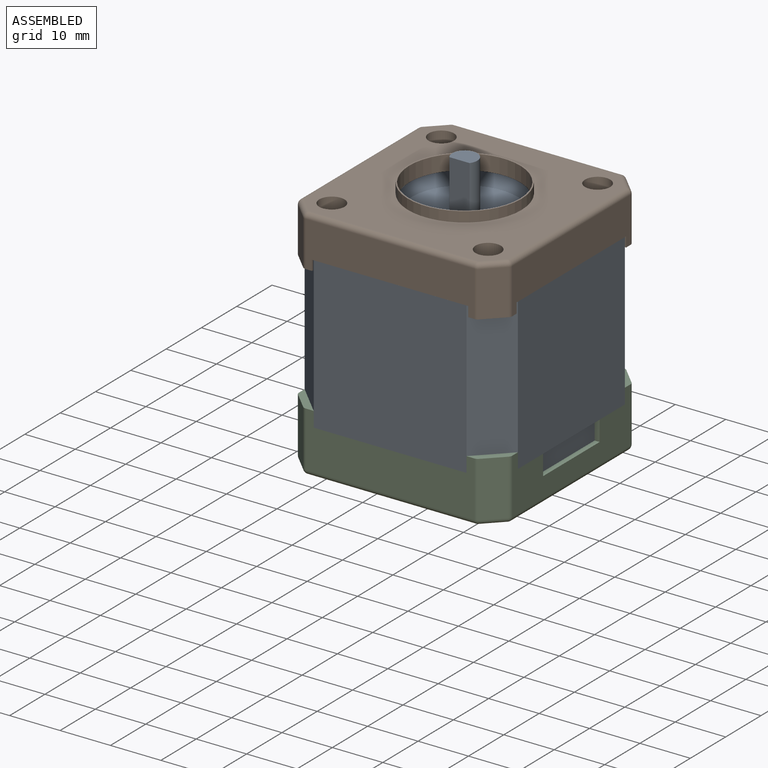
[diagram: assembled view]
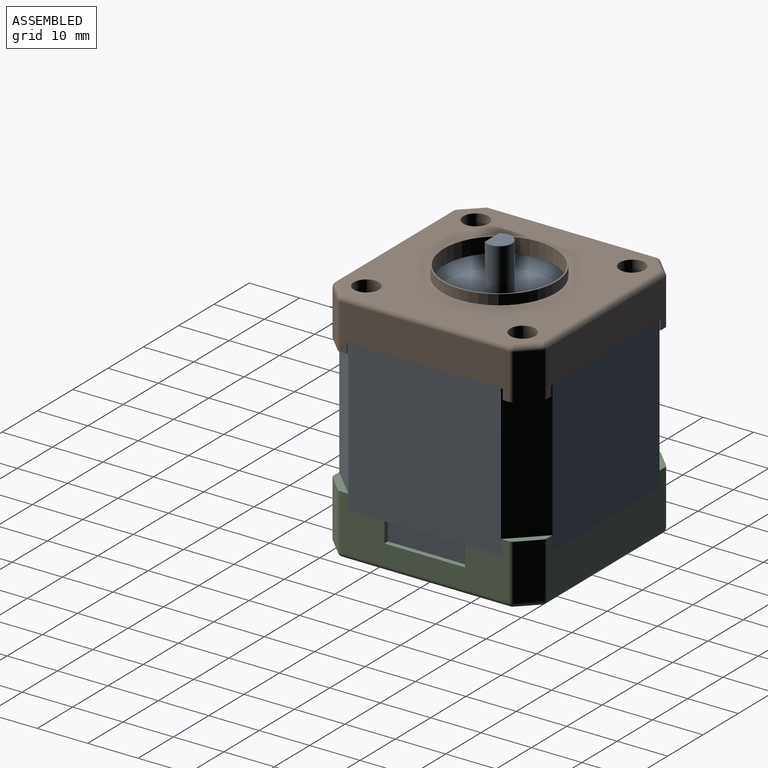
[diagram: assembled view, second angle]
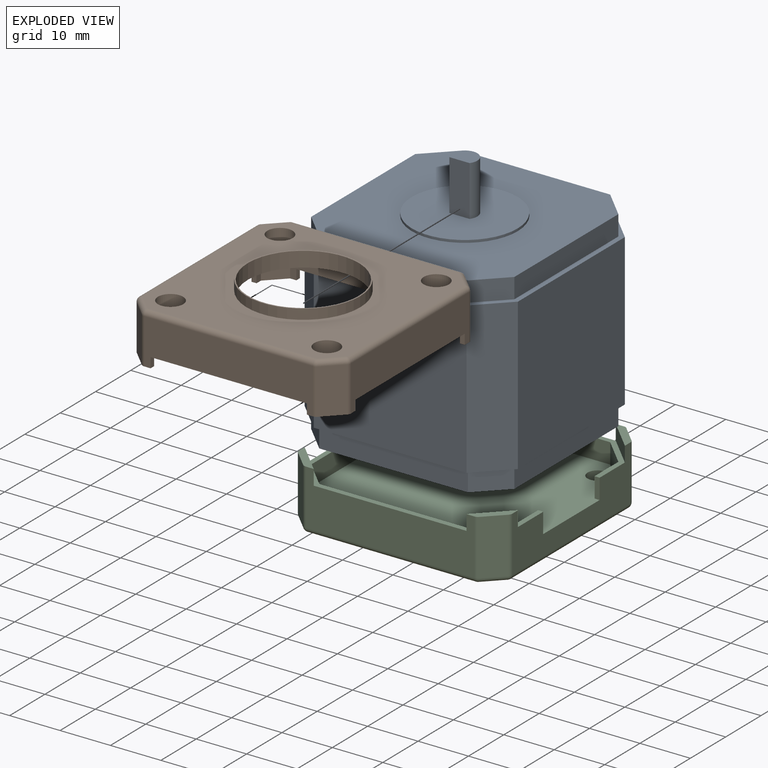
[diagram: exploded view]
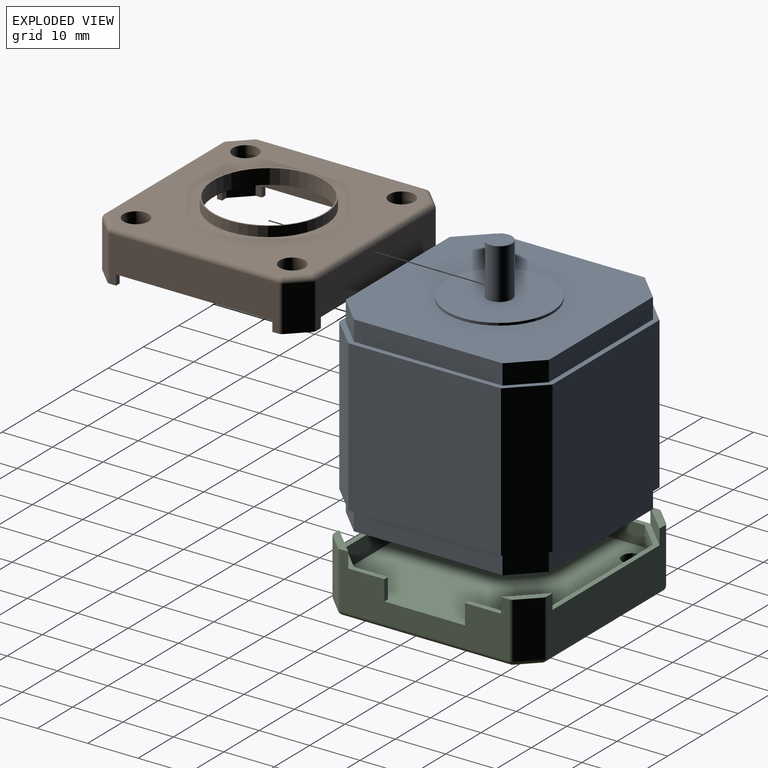
[diagram: exploded view, second angle]
ASSEMBLY  parts=3 mates=6
PART A: 33 faces, bbox 42.3x42.3x48.5 mm
  f0: plane 29.47x4mm, normal (0,-1,0), area 117.9mm2, adj f4,f7,f8,f9
  f1: plane 29.47x4mm, normal (1,0,0), area 117.9mm2, adj f4,f5,f7,f9
  f2: plane 29.47x4mm, normal (0,1,0), area 117.9mm2, adj f4,f5,f6,f9
  f3: plane 29.47x4mm, normal (-1,0,0), area 117.9mm2, adj f4,f6,f8,f9
  f4: plane 40.3x40.3mm, normal (0,0,-1), area 1565.5mm2, adj f0,f1,f2,f3,f5,f6,f7,f8
  f5: plane 5.41x5.41mm, normal (0.71,0.71,0), area 30.6mm2, adj f1,f2,f4,f9
  f6: plane 5.41x5.41mm, normal (-0.71,0.71,0), area 30.6mm2, adj f2,f3,f4,f9
  f7: plane 5.41x5.41mm, normal (0.71,-0.71,0), area 30.6mm2, adj f0,f1,f4,f9
  f8: plane 5.41x5.41mm, normal (-0.71,-0.71,0), area 30.6mm2, adj f0,f3,f4,f9
  f9: plane 42.3x42.3mm, normal (0,0,-1), area 151.8mm2, adj f0,f1,f2,f3,f5,f6,f7,f8
  f10: plane 30.3x30mm, normal (0,-1,0), area 909mm2, adj f9,f14,f17,f18
  f11: plane 30.3x30mm, normal (1,0,0), area 909mm2, adj f9,f14,f16,f17
  f12: plane 30.3x30mm, normal (0,1,0), area 909mm2, adj f9,f14,f15,f16
  f13: plane 30.3x30mm, normal (-1,0,0), area 909mm2, adj f9,f14,f15,f18
  f14: plane 42.3x42.3mm, normal (0,0,1), area 151.8mm2, adj f10,f11,f12,f13,f15,f16,f17,f18
  f15: plane 30x6mm, normal (-0.71,0.71,0), area 254.6mm2, adj f9,f12,f13,f14
  f16: plane 30x6mm, normal (0.71,0.71,0), area 254.6mm2, adj f9,f11,f12,f14
  f17: plane 30x6mm, normal (0.71,-0.71,0), area 254.6mm2, adj f9,f10,f11,f14
  f18: plane 30x6mm, normal (-0.71,-0.71,0), area 254.6mm2, adj f9,f10,f13,f14
  f19: plane 29.47x4mm, normal (0,-1,0), area 117.9mm2, adj f14,f23,f24,f25
  f20: plane 29.47x4mm, normal (1,0,0), area 117.9mm2, adj f14,f23,f24,f27
  f21: plane 29.47x4mm, normal (0,1,0), area 117.9mm2, adj f14,f23,f26,f27
  f22: plane 29.47x4mm, normal (-1,0,0), area 117.9mm2, adj f14,f23,f25,f26
  f23: plane 40.3x40.3mm, normal (0,0,1), area 1219.1mm2, adj f19,f20,f21,f22,f24,f25,f26,f27
  f24: plane 5.41x5.41mm, normal (0.71,-0.71,0), area 30.6mm2, adj f14,f19,f20,f23
  f25: plane 5.41x5.41mm, normal (-0.71,-0.71,0), area 30.6mm2, adj f14,f19,f22,f23
  f26: plane 5.41x5.41mm, normal (-0.71,0.71,0), area 30.6mm2, adj f14,f21,f22,f23
  f27: plane 5.41x5.41mm, normal (0.71,0.71,0), area 30.6mm2, adj f14,f20,f21,f23
  f28: cylinder r=10.5mm len=21mm, axis (0,0,-1), area 33mm2, adj f23,f29
  f29: plane 21x21mm, normal (0,0,1), area 329.5mm2, adj f28,f30,f31
  f30: plane 10x4mm, normal (0,-1,0), area 40mm2, adj f29,f31,f32
  f31: cylinder r=2.5mm len=10mm, axis (0,0,-1), area 110.7mm2, adj f29,f30,f32
  f32: plane 5x4mm, normal (0,0,1), area 16.8mm2, adj f30,f31
PART B: 81 faces, bbox 42.3x42.3x12 mm
  f0: plane 5.65x5.65mm, normal (0,0,-1), area 8.1mm2, adj f3,f6,f7,f10,f19,f32,f44,f52
  f1: plane 5.65x5.65mm, normal (0,0,-1), area 8.1mm2, adj f5,f6,f9,f10,f18,f31,f43,f47
  f2: plane 5.65x5.65mm, normal (0,0,-1), area 8.1mm2, adj f4,f5,f8,f9,f17,f30,f46,f50
  f3: plane 33.47x9mm, normal (-1,0,0), area 239.2mm2, adj f0,f11,f51,f52,f53,f71,f77,f80
  f4: plane 33.47x9mm, normal (0,-1,0), area 239.2mm2, adj f2,f11,f48,f49,f50,f68,f73,f74
  f5: plane 33.47x9mm, normal (1,0,0), area 239.2mm2, adj f1,f2,f45,f46,f47,f57,f61,f62
  f6: plane 33.47x9mm, normal (0,1,0), area 239.2mm2, adj f0,f1,f42,f43,f44,f59,f65,f66
  f7: plane 33.47x9mm, normal (1,0,0), area 239.2mm2, adj f0,f11,f29,f32,f33,f51,f52,f53
  f8: plane 33.47x9mm, normal (0,1,0), area 239.2mm2, adj f2,f11,f29,f30,f33,f48,f49,f50
  f9: plane 33.47x9mm, normal (-1,0,0), area 239.2mm2, adj f1,f2,f30,f31,f33,f45,f46,f47
  f10: plane 33.47x9mm, normal (0,-1,0), area 239.2mm2, adj f0,f1,f31,f32,f33,f42,f43,f44
  f11: plane 5.65x5.65mm, normal (0,0,-1), area 8.1mm2, adj f3,f4,f7,f8,f16,f29,f49,f51
  f12: cylinder r=2mm len=4mm, axis (0,0,-1), area 12.6mm2, adj f26,f39
  f13: cylinder r=2mm len=4mm, axis (0,0,-1), area 12.6mm2, adj f24,f37
  f14: cylinder r=2mm len=4mm, axis (0,0,-1), area 12.6mm2, adj f22,f35
  f15: cylinder r=2mm len=4mm, axis (0,0,-1), area 12.6mm2, adj f28,f41
  f16: plane 9x3.41mm, normal (-0.71,-0.71,0), area 43.5mm2, adj f11,f74,f78,f80
  f17: plane 9x3.41mm, normal (0.71,-0.71,0), area 43.5mm2, adj f2,f62,f67,f68
  f18: plane 9x3.41mm, normal (0.71,0.71,0), area 43.5mm2, adj f1,f57,f59,f60
  f19: plane 9x3.41mm, normal (-0.71,0.71,0), area 43.5mm2, adj f0,f65,f71,f72
  f20: plane 40.3x40.3mm, normal (0,0,1), area 1124.6mm2, adj f21,f23,f25,f27,f55,f60,f61,f66
  f21: cylinder r=2.5mm len=5mm, axis (0,0,1), area 47.1mm2, adj f20,f22
  f22: plane 5x5mm, normal (0,0,1), area 7.1mm2, adj f14,f21
  f23: cylinder r=2.5mm len=5mm, axis (0,0,1), area 47.1mm2, adj f20,f24
  f24: plane 5x5mm, normal (0,0,1), area 7.1mm2, adj f13,f23
  f25: cylinder r=2.5mm len=5mm, axis (0,0,1), area 47.1mm2, adj f20,f26
  f26: plane 5x5mm, normal (0,0,1), area 7.1mm2, adj f12,f25
  f27: cylinder r=2.5mm len=5mm, axis (0,0,1), area 47.1mm2, adj f20,f28
  f28: plane 5x5mm, normal (0,0,1), area 7.1mm2, adj f15,f27
  f29: plane 9x3.41mm, normal (0.71,0.71,0), area 43.5mm2, adj f7,f8,f11,f33
  f30: plane 9x3.41mm, normal (-0.71,0.71,0), area 43.5mm2, adj f2,f8,f9,f33
  f31: plane 9x3.41mm, normal (-0.71,-0.71,0), area 43.5mm2, adj f1,f9,f10,f33
  f32: plane 9x3.41mm, normal (0.71,-0.71,0), area 43.5mm2, adj f0,f7,f10,f33
  f33: plane 40.3x40.3mm, normal (0,0,-1), area 1066.7mm2, adj f7,f8,f9,f10,f29,f30,f31,f32
  f34: cylinder r=3.5mm len=7mm, axis (0,0,1), area 66mm2, adj f33,f35
  f35: plane 7x7mm, normal (0,0,-1), area 25.9mm2, adj f14,f34
  f36: cylinder r=3.5mm len=7mm, axis (0,0,1), area 66mm2, adj f33,f37
  f37: plane 7x7mm, normal (0,0,-1), area 25.9mm2, adj f13,f36
  f38: cylinder r=3.5mm len=7mm, axis (0,0,1), area 66mm2, adj f33,f39
  f39: plane 7x7mm, normal (0,0,-1), area 25.9mm2, adj f12,f38
  f40: cylinder r=3.5mm len=7mm, axis (0,0,1), area 66mm2, adj f33,f41
  f41: plane 7x7mm, normal (0,0,-1), area 25.9mm2, adj f15,f40
  f42: plane 31x1mm, normal (0,0,-1), area 31mm2, adj f6,f10,f43,f44
  f43: plane 2x1mm, normal (-1,0,0), area 2mm2, adj f1,f6,f10,f42
  f44: plane 2x1mm, normal (1,0,0), area 2mm2, adj f0,f6,f10,f42
  f45: plane 31x1mm, normal (0,0,-1), area 31mm2, adj f5,f9,f46,f47
  f46: plane 2x1mm, normal (0,1,0), area 2mm2, adj f2,f5,f9,f45
  f47: plane 2x1mm, normal (0,-1,0), area 2mm2, adj f1,f5,f9,f45
  f48: plane 31x1mm, normal (0,0,-1), area 31mm2, adj f4,f8,f49,f50
  f49: plane 2x1mm, normal (1,0,0), area 2mm2, adj f4,f8,f11,f48
  f50: plane 2x1mm, normal (-1,0,0), area 2mm2, adj f2,f4,f8,f48
  f51: plane 2x1mm, normal (0,1,0), area 2mm2, adj f3,f7,f11,f53
  f52: plane 2x1mm, normal (0,-1,0), area 2mm2, adj f0,f3,f7,f53
  f53: plane 31x1mm, normal (0,0,-1), area 31mm2, adj f3,f7,f51,f52
  f54: cylinder r=11mm len=22mm, axis (0,0,-1), area 207.3mm2, adj f33,f56
  f55: cylinder r=11.25mm len=22.5mm, axis (0,0,-1), area 141.4mm2, adj f20,f56
  f56: plane 22.5x22.5mm, normal (0,0,1), area 17.5mm2, adj f54,f55
  f57: cylinder r=1mm len=9mm, axis (0,0,-1), area 7.1mm2, adj f1,f5,f18,f58
  f58: sphere r=1mm, area 0.8mm2, adj f57,f60,f61
  f59: cylinder r=1mm len=9mm, axis (0,0,-1), area 7.1mm2, adj f1,f6,f18,f63
  f60: cylinder r=1mm len=4.12mm, axis (0.71,-0.71,0), area 7.6mm2, adj f18,f20,f58,f63
  f61: cylinder r=1mm len=33.47mm, axis (0,-1,0), area 52.6mm2, adj f5,f20,f58,f64
  f62: cylinder r=1mm len=9mm, axis (0,0,-1), area 7.1mm2, adj f2,f5,f17,f64
  f63: sphere r=1mm, area 0.8mm2, adj f59,f60,f66
  f64: sphere r=1mm, area 0.8mm2, adj f61,f62,f67
  f65: cylinder r=1mm len=9mm, axis (0,0,-1), area 7.1mm2, adj f0,f6,f19,f69
  f66: cylinder r=1mm len=33.47mm, axis (1,0,0), area 52.6mm2, adj f6,f20,f63,f69
  f67: cylinder r=1mm len=4.12mm, axis (-0.71,-0.71,0), area 7.6mm2, adj f17,f20,f64,f70
  f68: cylinder r=1mm len=9mm, axis (0,0,-1), area 7.1mm2, adj f2,f4,f17,f70
  f69: sphere r=1mm, area 0.8mm2, adj f65,f66,f72
  f70: sphere r=1mm, area 0.8mm2, adj f67,f68,f73
  f71: cylinder r=1mm len=9mm, axis (0,0,-1), area 7.1mm2, adj f0,f3,f19,f75
  f72: cylinder r=1mm len=4.12mm, axis (0.71,0.71,0), area 7.6mm2, adj f19,f20,f69,f75
  f73: cylinder r=1mm len=33.47mm, axis (-1,0,0), area 52.6mm2, adj f4,f20,f70,f76
  f74: cylinder r=1mm len=9mm, axis (0,0,-1), area 7.1mm2, adj f4,f11,f16,f76
  f75: sphere r=1mm, area 0.8mm2, adj f71,f72,f77
  f76: sphere r=1mm, area 0.8mm2, adj f73,f74,f78
  f77: cylinder r=1mm len=33.47mm, axis (0,1,0), area 52.6mm2, adj f3,f20,f75,f79
  f78: cylinder r=1mm len=4.12mm, axis (-0.71,0.71,0), area 7.6mm2, adj f16,f20,f76,f79
  f79: sphere r=1mm, area 0.8mm2, adj f77,f78,f80
  f80: cylinder r=1mm len=9mm, axis (0,0,-1), area 7.1mm2, adj f3,f11,f16,f79
PART C: 66 faces, bbox 42.3x42.3x12 mm
  f0: plane 42.3x42.3mm, normal (0,0,1), area 135.8mm2, adj f1,f10,f11,f12,f13,f19,f20,f21
  f1: plane 6.74x4mm, normal (-1,0,0), area 26.9mm2, adj f0,f47,f54,f64
  f2: cylinder r=2mm len=4mm, axis (0,0,1), area 25.1mm2, adj f47,f56
  f3: cylinder r=2mm len=4mm, axis (0,0,1), area 25.1mm2, adj f47,f58
  f4: cylinder r=2mm len=4mm, axis (0,0,1), area 25.1mm2, adj f47,f60
  f5: cylinder r=2mm len=4mm, axis (0,0,1), area 25.1mm2, adj f47,f62
  f6: plane 6x6mm, normal (0,0,1), area 10mm2, adj f10,f11,f17,f19,f37,f46
  f7: plane 6x6mm, normal (0,0,1), area 10mm2, adj f10,f12,f15,f20,f25,f31
  f8: plane 6x6mm, normal (0,0,1), area 10mm2, adj f12,f13,f16,f21,f23,f28
  f9: plane 6x6mm, normal (0,0,1), area 10mm2, adj f11,f13,f18,f22,f34,f40
  f10: plane 33.47x11mm, normal (-1,0,0), area 277.3mm2, adj f0,f6,f7,f19,f20,f31,f37,f38
  f11: plane 33.47x11mm, normal (0,1,0), area 277.3mm2, adj f0,f6,f9,f19,f22,f40,f44,f46
  f12: plane 33.47x11mm, normal (0,-1,0), area 277.3mm2, adj f0,f7,f8,f20,f21,f23,f25,f26
  f13: plane 33.47x11mm, normal (1,0,0), area 213.3mm2, adj f0,f8,f9,f21,f22,f28,f33,f34
  f14: plane 40.3x40.3mm, normal (0,0,-1), area 1522.2mm2, adj f26,f27,f32,f33,f38,f39,f43,f44
  f15: plane 11x3.41mm, normal (-0.71,-0.71,0), area 53.1mm2, adj f7,f25,f31,f32
  f16: plane 11x3.41mm, normal (0.71,-0.71,0), area 53.1mm2, adj f8,f23,f27,f28
  f17: plane 11x3.41mm, normal (-0.71,0.71,0), area 53.1mm2, adj f6,f37,f43,f46
  f18: plane 11x3.41mm, normal (0.71,0.71,0), area 53.1mm2, adj f9,f34,f39,f40
  f19: plane 6x6mm, normal (0.71,-0.71,0), area 25.5mm2, adj f0,f6,f10,f11
  f20: plane 6x6mm, normal (0.71,0.71,0), area 25.5mm2, adj f0,f7,f10,f12
  f21: plane 6x6mm, normal (-0.71,0.71,0), area 25.5mm2, adj f0,f8,f12,f13
  f22: plane 6x6mm, normal (-0.71,-0.71,0), area 25.5mm2, adj f0,f9,f11,f13
  f23: cylinder r=1mm len=11mm, axis (0,0,1), area 8.6mm2, adj f8,f12,f16,f24
  f24: sphere r=1mm, area 0.8mm2, adj f23,f26,f27
  f25: cylinder r=1mm len=11mm, axis (0,0,1), area 8.6mm2, adj f7,f12,f15,f29
  f26: cylinder r=1mm len=33.47mm, axis (1,0,0), area 52.6mm2, adj f12,f14,f24,f29
  f27: cylinder r=1mm len=4.12mm, axis (-0.71,-0.71,0), area 7.6mm2, adj f14,f16,f24,f30
  f28: cylinder r=1mm len=11mm, axis (0,0,-1), area 8.6mm2, adj f8,f13,f16,f30
  f29: sphere r=1mm, area 0.8mm2, adj f25,f26,f32
  f30: sphere r=1mm, area 0.8mm2, adj f27,f28,f33
  f31: cylinder r=1mm len=11mm, axis (0,0,1), area 8.6mm2, adj f7,f10,f15,f35
  f32: cylinder r=1mm len=4.12mm, axis (0.71,-0.71,0), area 7.6mm2, adj f14,f15,f29,f35
  f33: cylinder r=1mm len=33.47mm, axis (0,1,0), area 52.6mm2, adj f13,f14,f30,f36
  f34: cylinder r=1mm len=11mm, axis (0,0,-1), area 8.6mm2, adj f9,f13,f18,f36
  f35: sphere r=1mm, area 0.8mm2, adj f31,f32,f38
  f36: sphere r=1mm, area 0.8mm2, adj f33,f34,f39
  f37: cylinder r=1mm len=11mm, axis (0,0,1), area 8.6mm2, adj f6,f10,f17,f41
  f38: cylinder r=1mm len=33.47mm, axis (0,-1,0), area 52.6mm2, adj f10,f14,f35,f41
  f39: cylinder r=1mm len=4.12mm, axis (-0.71,0.71,0), area 7.6mm2, adj f14,f18,f36,f42
  f40: cylinder r=1mm len=11mm, axis (0,0,-1), area 8.6mm2, adj f9,f11,f18,f42
  f41: sphere r=1mm, area 0.8mm2, adj f37,f38,f43
  f42: sphere r=1mm, area 0.8mm2, adj f39,f40,f44
  f43: cylinder r=1mm len=4.12mm, axis (0.71,0.71,0), area 7.6mm2, adj f14,f17,f41,f45
  f44: cylinder r=1mm len=33.47mm, axis (-1,0,0), area 52.6mm2, adj f11,f14,f42,f45
  f45: sphere r=1mm, area 0.8mm2, adj f43,f44,f46
  f46: cylinder r=1mm len=11mm, axis (0,0,-1), area 8.6mm2, adj f6,f11,f17,f45
  f47: plane 41.3x40.3mm, normal (0,0,1), area 1531.2mm2, adj f1,f2,f3,f4,f5,f13,f48,f49
  f48: plane 5.41x5.41mm, normal (0.71,-0.71,0), area 30.6mm2, adj f0,f47,f49,f55
  f49: plane 29.47x4mm, normal (1,0,0), area 117.9mm2, adj f0,f47,f48,f50
  f50: plane 5.41x5.41mm, normal (0.71,0.71,0), area 30.6mm2, adj f0,f47,f49,f51
  f51: plane 29.47x4mm, normal (0,1,0), area 117.9mm2, adj f0,f47,f50,f52
  f52: plane 5.41x5.41mm, normal (-0.71,0.71,0), area 30.6mm2, adj f0,f47,f51,f53
  f53: plane 6.74x4mm, normal (-1,0,0), area 26.9mm2, adj f0,f47,f52,f65
  f54: plane 5.41x5.41mm, normal (-0.71,-0.71,0), area 30.6mm2, adj f0,f1,f47,f55
  f55: plane 29.47x4mm, normal (0,-1,0), area 117.9mm2, adj f0,f47,f48,f54
  f56: plane 5x5mm, normal (0,0,-1), area 7.1mm2, adj f2,f57
  f57: cylinder r=2.5mm len=5mm, axis (0,0,-1), area 47.1mm2, adj f14,f56
  f58: plane 5x5mm, normal (0,0,-1), area 7.1mm2, adj f3,f59
  f59: cylinder r=2.5mm len=5mm, axis (0,0,-1), area 47.1mm2, adj f14,f58
  f60: plane 5x5mm, normal (0,0,-1), area 7.1mm2, adj f4,f61
  f61: cylinder r=2.5mm len=5mm, axis (0,0,-1), area 47.1mm2, adj f14,f60
  f62: plane 5x5mm, normal (0,0,-1), area 7.1mm2, adj f5,f63
  f63: cylinder r=2.5mm len=5mm, axis (0,0,-1), area 47.1mm2, adj f14,f62
  f64: plane 4x1mm, normal (0,-1,0), area 4mm2, adj f0,f1,f13,f47
  f65: plane 4x1mm, normal (0,1,0), area 4mm2, adj f0,f13,f47,f53
PLACE A t=(-2.48,-96.11,38.82)mm
PLACE B t=(-2.48,-96.11,70.82)mm
PLACE C t=(-23.63,-117.26,33.82)mm
MATE planar B.f10 <-> A.f21  axis (0,-1,0) through (-2.48,-75.96,76.23)mm
MATE planar A.f22 <-> B.f7  axis (-1,0,0) through (-22.63,-96.11,74.82)mm
MATE planar A.f28 <-> B.f15  axis (0,0,1) through (-2.48,-96.11,76.82)mm
MATE planar C.f47 <-> A.f28  axis (0,0,1) through (-2.48,-75.96,38.82)mm
MATE planar C.f49 <-> A.f3  axis (1,0,0) through (-22.63,-96.11,40.82)mm
MATE planar A.f0 <-> C.f51  axis (0,-1,0) through (-2.48,-116.26,40.82)mm
